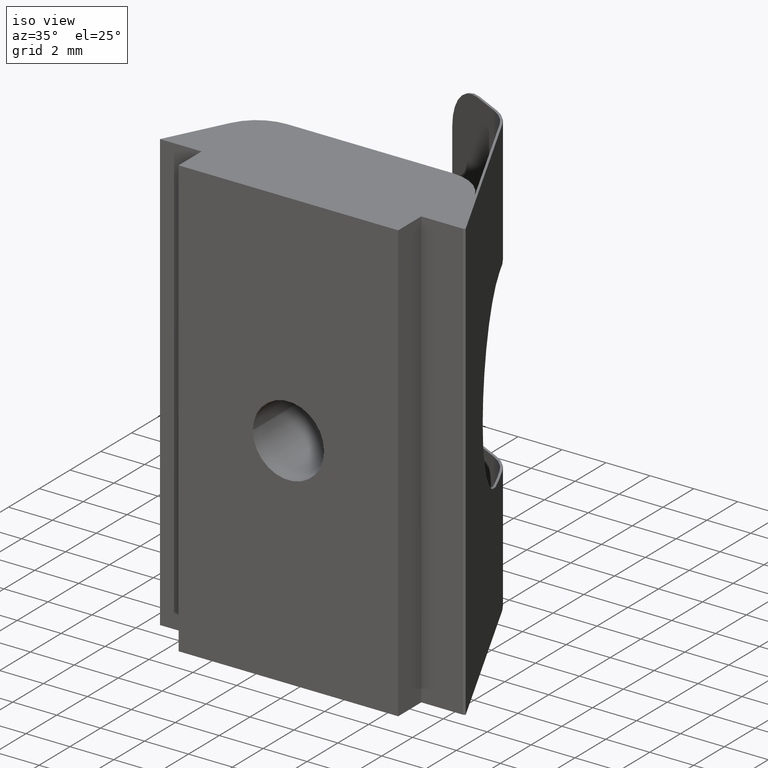
[diagram: clean part render]
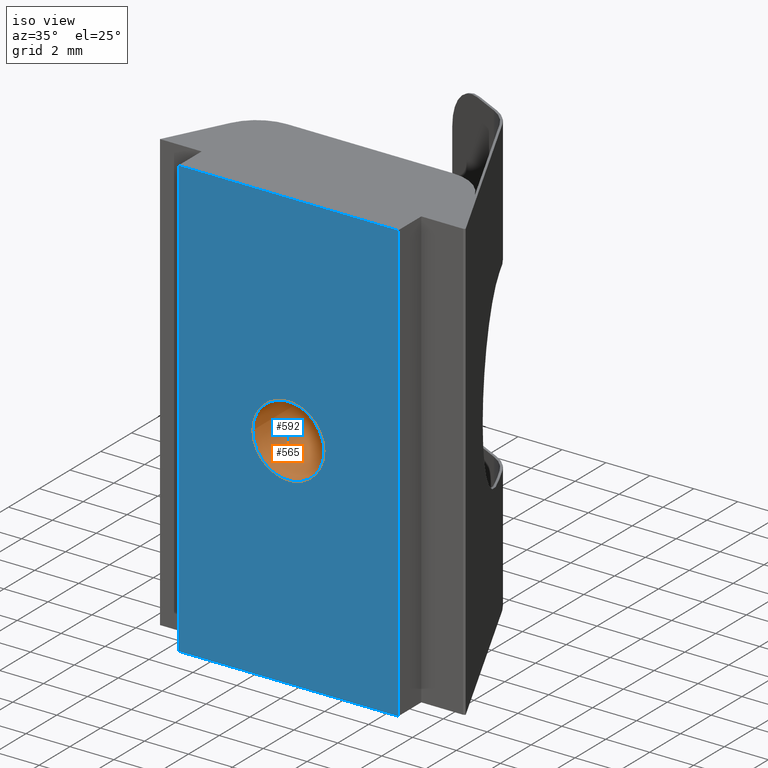
[diagram: same view with the hole feature highlighted: cylindrical wall and planar end face, labeled with their STEP entity ids]
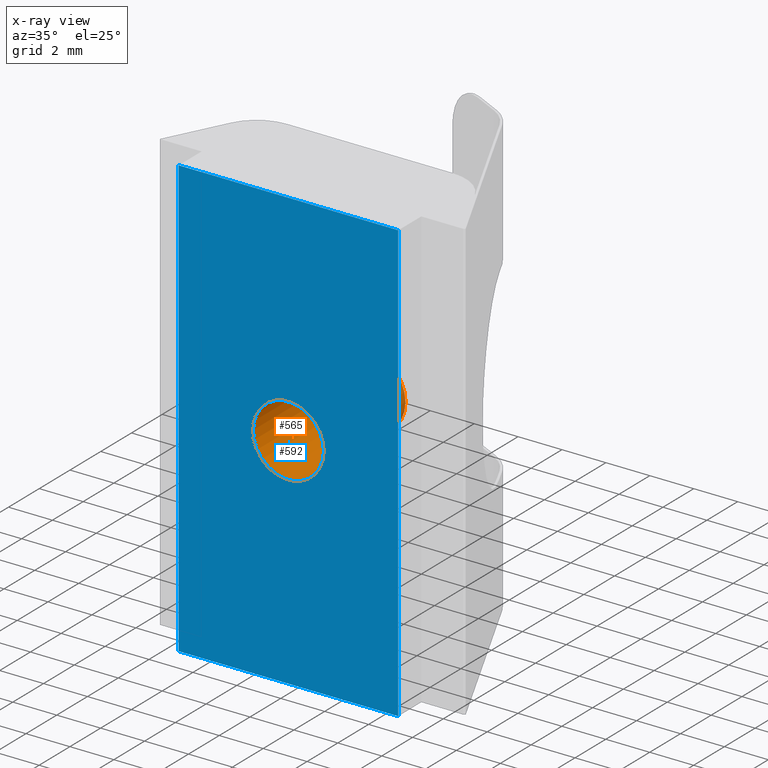
[diagram: x-ray of the same camera — body ghosted, the hole faces saturated]
A machine part, iso view. The highlighted faces form one hole feature of diameter 3.242 mm: the cylindrical wall (entity #565, orange) and its adjacent planar end face (entity #592, blue) — they share a circular edge in the B-rep.
The next image is the same camera in x-ray (body ghosted, the hole faces saturated) — the bore reads through the body.
Wall:
#38=FACE_OUTER_BOUND('',#68,.T.);
#68=EDGE_LOOP('',(#388,#389,#390,#391));
#100=LINE('',#836,#164);
#164=VECTOR('',#673,1.621);
#228=CIRCLE('',#619,1.621);
#229=CIRCLE('',#620,1.621);
#248=VERTEX_POINT('',#833);
#249=VERTEX_POINT('',#835);
#304=EDGE_CURVE('',#248,#248,#228,.T.);
#305=EDGE_CURVE('',#248,#249,#100,.T.);
#306=EDGE_CURVE('',#249,#249,#229,.T.);
#388=ORIENTED_EDGE('',*,*,#304,.F.);
#389=ORIENTED_EDGE('',*,*,#305,.T.);
#390=ORIENTED_EDGE('',*,*,#306,.F.);
#391=ORIENTED_EDGE('',*,*,#305,.F.);
#556=CYLINDRICAL_SURFACE('',#618,1.621);
#565=ADVANCED_FACE('',(#38),#556,.F.);
#618=AXIS2_PLACEMENT_3D('',#832,#669,#670);
#619=AXIS2_PLACEMENT_3D('',#834,#671,#672);
#620=AXIS2_PLACEMENT_3D('',#837,#674,#675);
#669=DIRECTION('center_axis',(0.,-1.,0.));
#670=DIRECTION('ref_axis',(1.,0.,0.));
#671=DIRECTION('center_axis',(0.,1.,0.));
#672=DIRECTION('ref_axis',(1.,0.,0.));
#673=DIRECTION('',(0.,1.,0.));
#674=DIRECTION('center_axis',(0.,-1.,0.));
#675=DIRECTION('ref_axis',(1.,0.,0.));
#832=CARTESIAN_POINT('Origin',(0.,25.7826708357418,10.));
#833=CARTESIAN_POINT('',(-1.621,-1.5,10.));
#834=CARTESIAN_POINT('Origin',(0.,-1.5,10.));
#835=CARTESIAN_POINT('',(-1.621,3.8,10.));
#836=CARTESIAN_POINT('',(-1.621,25.7826708357418,10.));
#837=CARTESIAN_POINT('Origin',(0.,3.8,10.));
End face:
#16=FACE_BOUND('',#97,.T.);
#35=PLANE('',#664);
#65=FACE_OUTER_BOUND('',#96,.T.);
#96=EDGE_LOOP('',(#543,#544,#545,#546));
#97=EDGE_LOOP('',(#547));
#142=LINE('',#961,#206);
#154=LINE('',#990,#218);
#161=LINE('',#1005,#225);
#162=LINE('',#1007,#226);
#206=VECTOR('',#775,10.);
#218=VECTOR('',#805,10.);
#225=VECTOR('',#822,10.);
#226=VECTOR('',#825,10.);
#228=CIRCLE('',#619,1.621);
#248=VERTEX_POINT('',#833);
#291=VERTEX_POINT('',#958);
#292=VERTEX_POINT('',#960);
#299=VERTEX_POINT('',#987);
#300=VERTEX_POINT('',#989);
#304=EDGE_CURVE('',#248,#248,#228,.T.);
#363=EDGE_CURVE('',#291,#292,#142,.T.);
#377=EDGE_CURVE('',#299,#300,#154,.T.);
#385=EDGE_CURVE('',#299,#292,#161,.T.);
#386=EDGE_CURVE('',#300,#291,#162,.T.);
#543=ORIENTED_EDGE('',*,*,#377,.F.);
#544=ORIENTED_EDGE('',*,*,#385,.T.);
#545=ORIENTED_EDGE('',*,*,#363,.F.);
#546=ORIENTED_EDGE('',*,*,#386,.F.);
#547=ORIENTED_EDGE('',*,*,#304,.T.);
#592=ADVANCED_FACE('',(#65,#16),#35,.T.);
#619=AXIS2_PLACEMENT_3D('',#834,#671,#672);
#664=AXIS2_PLACEMENT_3D('',#1006,#823,#824);
#671=DIRECTION('center_axis',(0.,1.,0.));
#672=DIRECTION('ref_axis',(1.,0.,0.));
#775=DIRECTION('',(1.,0.,0.));
#805=DIRECTION('',(-1.,0.,0.));
#822=DIRECTION('',(0.,0.,1.));
#823=DIRECTION('center_axis',(0.,-1.,0.));
#824=DIRECTION('ref_axis',(1.,0.,0.));
#825=DIRECTION('',(0.,0.,1.));
#833=CARTESIAN_POINT('',(-1.621,-1.5,10.));
#834=CARTESIAN_POINT('Origin',(0.,-1.5,10.));
#958=CARTESIAN_POINT('',(-5.,-1.5,20.));
#960=CARTESIAN_POINT('',(5.,-1.5,20.));
#961=CARTESIAN_POINT('',(5.,-1.5,20.));
#987=CARTESIAN_POINT('',(5.,-1.5,0.));
#989=CARTESIAN_POINT('',(-5.,-1.5,0.));
#990=CARTESIAN_POINT('',(5.,-1.5,0.));
#1005=CARTESIAN_POINT('',(5.,-1.5,0.));
#1006=CARTESIAN_POINT('Origin',(-5.,-1.5,0.));
#1007=CARTESIAN_POINT('',(-5.,-1.5,0.));